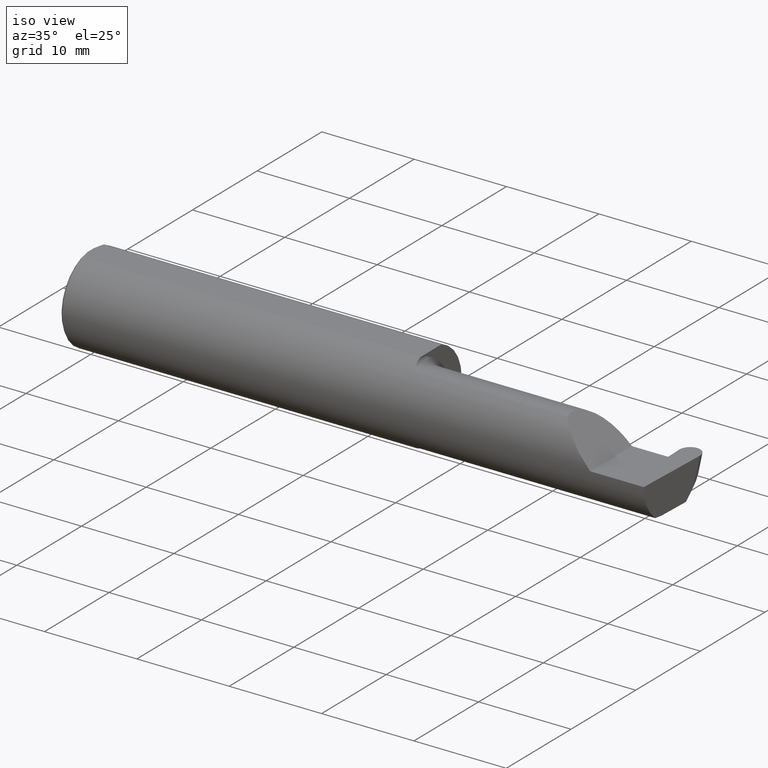
[diagram: clean part render]
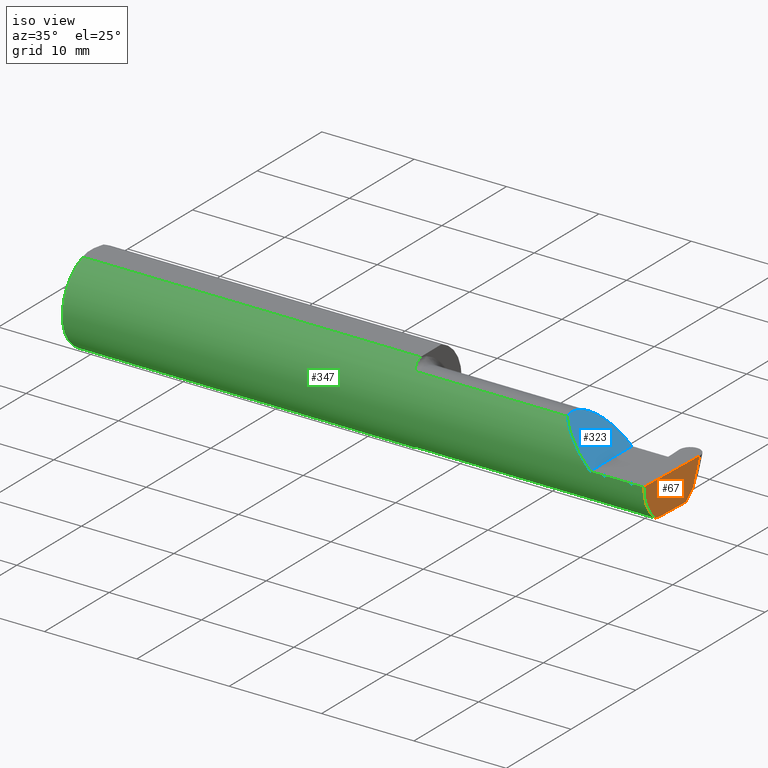
[diagram: same view with three faces highlighted in distinct colors, each labeled with its STEP entity id]
A machine part, iso view with three faces highlighted in distinct colors.
Their STEP definitions:

[orange] entity #67 — the highlighted planar face has unit normal (-0.9992, 0.0349, 0.0175).
#9 = CARTESIAN_POINT ( 'NONE',  ( 2.496782013450319582, 0.1018667288808076804, -0.1084363226623426962 ) ) ;
#16 = DIRECTION ( 'NONE',  ( -0.03489949670249319069, -0.9993908270190959842, 0.000000000000000000 ) ) ;
#38 = ORIENTED_EDGE ( 'NONE', *, *, #447, .T. ) ;
#57 = ORIENTED_EDGE ( 'NONE', *, *, #200, .F. ) ;
#67 = ADVANCED_FACE ( 'NONE', ( #364 ), #420, .F. ) ;
#84 = VERTEX_POINT ( 'NONE', #480 ) ;
#88 = VECTOR ( 'NONE', #229, 39.37007874015748854 ) ;
#93 = DIRECTION ( 'NONE',  ( -0.9992386149554828290, 0.03489418134010589118, 0.01745240643728358451 ) ) ;
#105 = CARTESIAN_POINT ( 'NONE',  ( 2.487566561880238947, -0.1873499999999999610, -0.05781030015605118089 ) ) ;
#109 = CARTESIAN_POINT ( 'NONE',  ( 2.499906297085412898, 0.1370998259008695819, 0.000000000000000000 ) ) ;
#121 = VERTEX_POINT ( 'NONE', #143 ) ;
#122 = VECTOR ( 'NONE', #140, 39.37007874015748854 ) ;
#135 = VERTEX_POINT ( 'NONE', #630 ) ;
#140 = DIRECTION ( 'NONE',  ( 0.02739170151059986541, 0.3089010440752013031, 0.9506996579664918068 ) ) ;
#142 = EDGE_CURVE ( 'NONE', #436, #260, #301, .T. ) ;
#143 = CARTESIAN_POINT ( 'NONE',  ( 2.494604638945828956, 0.06030305154315079852, -0.1500000000000000500 ) ) ;
#178 = VECTOR ( 'NONE', #651, 39.37007874015748143 ) ;
#200 = EDGE_CURVE ( 'NONE', #436, #121, #687, .T. ) ;
#202 = AXIS2_PLACEMENT_3D ( 'NONE', #581, #93, #417 ) ;
#226 = EDGE_CURVE ( 'NONE', #84, #310, #561, .T. ) ;
#229 = DIRECTION ( 'NONE',  ( -0.03701744261649742712, -0.7066221440565398915, -0.7066221440565478851 ) ) ;
#251 = CARTESIAN_POINT ( 'NONE',  ( 2.499922542640338197, 0.1372830298860648612, 0.0005638438891804136138 ) ) ;
#260 = VERTEX_POINT ( 'NONE', #109 ) ;
#272 = CARTESIAN_POINT ( 'NONE',  ( 2.488471823259916782, -0.1172600179964005812, -0.1461167706989303927 ) ) ;
#277 = CARTESIAN_POINT ( 'NONE',  ( 2.488576259503493926, -0.1873499999999999888, 0.000000000000000000 ) ) ;
#280 = CARTESIAN_POINT ( 'NONE',  ( 2.487529306701961485, -0.1623470442677540093, -0.1099340280425339378 ) ) ;
#301 = LINE ( 'NONE', #251, #122 ) ;
#310 = VERTEX_POINT ( 'NONE', #537 ) ;
#339 = ORIENTED_EDGE ( 'NONE', *, *, #142, .T. ) ;
#342 = CARTESIAN_POINT ( 'NONE',  ( 2.499973137204639428, 0.1390138764844880415, 0.000000000000000000 ) ) ;
#364 = FACE_OUTER_BOUND ( 'NONE', #531, .T. ) ;
#372 = ORIENTED_EDGE ( 'NONE', *, *, #226, .F. ) ;
#386 = CARTESIAN_POINT ( 'NONE',  ( 2.488471823259916782, -0.1172600179964005812, -0.1461167706989303927 ) ) ;
#411 = CARTESIAN_POINT ( 'NONE',  ( 2.489588163846105484, -0.08334999999999997966, -0.1500000000000000500 ) ) ;
#417 = DIRECTION ( 'NONE',  ( -0.03489949670249319069, -0.9993908270190959842, 0.000000000000000000 ) ) ;
#420 = PLANE ( 'NONE',  #202 ) ;
#429 = CARTESIAN_POINT ( 'NONE',  ( 2.489884857891535574, -0.07485379416751684889, -0.1500000000000000500 ) ) ;
#430 = CARTESIAN_POINT ( 'NONE',  ( 2.497044125482537957, 0.1068701584290903395, -0.1034328931140599678 ) ) ;
#436 = VERTEX_POINT ( 'NONE', #9 ) ;
#442 =( BOUNDED_CURVE ( )  B_SPLINE_CURVE ( 3, ( #272, #532, #489, #411 ),
 .UNSPECIFIED., .F., .F. ) 
 B_SPLINE_CURVE_WITH_KNOTS ( ( 4, 4 ),
 ( 0.8789888184544065730, 1.107026853503850328 ),
 .UNSPECIFIED. ) 
 CURVE ( )  GEOMETRIC_REPRESENTATION_ITEM ( )  RATIONAL_B_SPLINE_CURVE ( ( 1.000000000000000000, 0.9956712472009929815, 0.9956712472009929815, 1.000000000000000000 ) ) 
 REPRESENTATION_ITEM ( '' )  );
#447 = EDGE_CURVE ( 'NONE', #260, #310, #671, .T. ) ;
#480 = CARTESIAN_POINT ( 'NONE',  ( 2.488471823259916782, -0.1172600179964005812, -0.1461167706989303927 ) ) ;
#489 = CARTESIAN_POINT ( 'NONE',  ( 2.489189135516857831, -0.09477667630339406402, -0.1500000000000000500 ) ) ;
#531 = EDGE_LOOP ( 'NONE', ( #57, #339, #38, #372, #696, #606 ) ) ;
#532 = CARTESIAN_POINT ( 'NONE',  ( 2.488815404197634251, -0.1061291577212407494, -0.1486999626928446616 ) ) ;
#537 = CARTESIAN_POINT ( 'NONE',  ( 2.488576259503493926, -0.1873499999999999888, 0.000000000000000000 ) ) ;
#561 =( BOUNDED_CURVE ( )  B_SPLINE_CURVE ( 3, ( #386, #280, #105, #277 ),
 .UNSPECIFIED., .F., .T. ) 
 B_SPLINE_CURVE_WITH_KNOTS ( ( 4, 4 ),
 ( 5.852427379562185727, 6.746954780470634461 ),
 .UNSPECIFIED. ) 
 CURVE ( )  GEOMETRIC_REPRESENTATION_ITEM ( )  RATIONAL_B_SPLINE_CURVE ( ( 1.000000000000000000, 0.9344226172588800949, 0.9344226172588800949, 1.000000000000000000 ) ) 
 REPRESENTATION_ITEM ( '' )  );
#575 = EDGE_CURVE ( 'NONE', #84, #135, #442, .T. ) ;
#577 = VECTOR ( 'NONE', #16, 39.37007874015748854 ) ;
#581 = CARTESIAN_POINT ( 'NONE',  ( 2.499973137204639428, 0.1390138764844880415, 0.000000000000000000 ) ) ;
#606 = ORIENTED_EDGE ( 'NONE', *, *, #610, .F. ) ;
#610 = EDGE_CURVE ( 'NONE', #121, #135, #701, .T. ) ;
#630 = CARTESIAN_POINT ( 'NONE',  ( 2.489588163846105484, -0.08334999999999997966, -0.1500000000000000500 ) ) ;
#651 = DIRECTION ( 'NONE',  ( -0.03489949670249319069, -0.9993908270190959842, 0.000000000000000000 ) ) ;
#671 = LINE ( 'NONE', #342, #577 ) ;
#687 = LINE ( 'NONE', #430, #88 ) ;
#696 = ORIENTED_EDGE ( 'NONE', *, *, #575, .T. ) ;
#701 = LINE ( 'NONE', #429, #178 ) ;

[blue] entity #323 — the highlighted planar face has unit normal (-0.7071, 0, -0.7071).
#10 = VERTEX_POINT ( 'NONE', #173 ) ;
#41 = ORIENTED_EDGE ( 'NONE', *, *, #632, .T. ) ;
#43 = DIRECTION ( 'NONE',  ( -0.7071067811865441310, 0.000000000000000000, -0.7071067811865510144 ) ) ;
#65 = CARTESIAN_POINT ( 'NONE',  ( 2.202189699843948301, -0.1873500000000000443, 0.05781030015605120170 ) ) ;
#173 = CARTESIAN_POINT ( 'NONE',  ( 2.260000000000000231, 0.06665000000000002867, 1.285879139104721225E-16 ) ) ;
#177 = CARTESIAN_POINT ( 'NONE',  ( 2.113883229301068312, -0.1172600179964003175, 0.1461167706989304760 ) ) ;
#196 =( BOUNDED_CURVE ( )  B_SPLINE_CURVE ( 3, ( #419, #215, #644, #262 ),
 .UNSPECIFIED., .F., .T. ) 
 B_SPLINE_CURVE_WITH_KNOTS ( ( 4, 4 ),
 ( 6.055147272130144920, 7.853981633974482790 ),
 .UNSPECIFIED. ) 
 CURVE ( )  GEOMETRIC_REPRESENTATION_ITEM ( )  RATIONAL_B_SPLINE_CURVE ( ( 1.000000000000000000, 0.7480442670255273985, 0.7480442670255273985, 1.000000000000000000 ) ) 
 REPRESENTATION_ITEM ( '' )  );
#215 = CARTESIAN_POINT ( 'NONE',  ( 2.090221225029926355, -0.01530148607434139371, 0.1697787749700724880 ) ) ;
#234 = LINE ( 'NONE', #327, #545 ) ;
#236 = EDGE_LOOP ( 'NONE', ( #555, #553, #41 ) ) ;
#250 = AXIS2_PLACEMENT_3D ( 'NONE', #661, #43, #383 ) ;
#262 = CARTESIAN_POINT ( 'NONE',  ( 2.260000000000000231, 0.06665000000000002867, 1.285879139104721225E-16 ) ) ;
#276 = CARTESIAN_POINT ( 'NONE',  ( 2.150065971957464850, -0.1623470442677540371, 0.1099340280425340488 ) ) ;
#323 = ADVANCED_FACE ( 'NONE', ( #439 ), #664, .F. ) ;
#327 = CARTESIAN_POINT ( 'NONE',  ( 2.260000000000000231, -0.2500000000000000555, 2.939152317953647352E-17 ) ) ;
#383 = DIRECTION ( 'NONE',  ( -0.7071067811865509034, 0.000000000000000000, 0.7071067811865440200 ) ) ;
#419 = CARTESIAN_POINT ( 'NONE',  ( 2.113883229301068312, -0.1172600179964003175, 0.1461167706989304760 ) ) ;
#439 = FACE_OUTER_BOUND ( 'NONE', #236, .T. ) ;
#468 = VERTEX_POINT ( 'NONE', #516 ) ;
#492 = CARTESIAN_POINT ( 'NONE',  ( 2.113883229301068312, -0.1172600179964003175, 0.1461167706989304760 ) ) ;
#499 = VERTEX_POINT ( 'NONE', #177 ) ;
#516 = CARTESIAN_POINT ( 'NONE',  ( 2.260000000000000231, -0.1873499999999999888, 2.939152317953647352E-17 ) ) ;
#545 = VECTOR ( 'NONE', #660, 39.37007874015748143 ) ;
#553 = ORIENTED_EDGE ( 'NONE', *, *, #677, .F. ) ;
#555 = ORIENTED_EDGE ( 'NONE', *, *, #594, .F. ) ;
#556 = CARTESIAN_POINT ( 'NONE',  ( 2.260000000000000231, -0.1873499999999999888, 2.939152317953647352E-17 ) ) ;
#594 = EDGE_CURVE ( 'NONE', #499, #10, #196, .T. ) ;
#632 = EDGE_CURVE ( 'NONE', #468, #10, #234, .T. ) ;
#644 = CARTESIAN_POINT ( 'NONE',  ( 2.155331797197863608, 0.06665000000000002867, 0.1046682028021359151 ) ) ;
#660 = DIRECTION ( 'NONE',  ( -0.000000000000000000, 1.000000000000000000, -0.000000000000000000 ) ) ;
#661 = CARTESIAN_POINT ( 'NONE',  ( 2.260000000000000231, -0.2500000000000000555, 2.939152317953647352E-17 ) ) ;
#664 = PLANE ( 'NONE',  #250 ) ;
#665 =( BOUNDED_CURVE ( )  B_SPLINE_CURVE ( 3, ( #556, #65, #276, #492 ),
 .UNSPECIFIED., .F., .F. ) 
 B_SPLINE_CURVE_WITH_KNOTS ( ( 4, 4 ),
 ( 4.712388980384688786, 5.606916381293139295 ),
 .UNSPECIFIED. ) 
 CURVE ( )  GEOMETRIC_REPRESENTATION_ITEM ( )  RATIONAL_B_SPLINE_CURVE ( ( 1.000000000000000000, 0.9344226172588797619, 0.9344226172588797619, 1.000000000000000000 ) ) 
 REPRESENTATION_ITEM ( '' )  );
#677 = EDGE_CURVE ( 'NONE', #468, #499, #665, .T. ) ;

[green] entity #347 — the highlighted cylindrical surface (partial cylindrical patch) has radius 4.7587 mm, axis along (-1, -0, -0).
#2 = LINE ( 'NONE', #388, #511 ) ;
#14 = EDGE_CURVE ( 'NONE', #399, #669, #18, .T. ) ;
#18 = CIRCLE ( 'NONE', #29, 0.1873499999999999888 ) ;
#19 = AXIS2_PLACEMENT_3D ( 'NONE', #560, #571, #238 ) ;
#29 = AXIS2_PLACEMENT_3D ( 'NONE', #682, #509, #572 ) ;
#32 = CARTESIAN_POINT ( 'NONE',  ( 1.465028532764138358, -0.1137241120808235306, -0.1488947809299403791 ) ) ;
#34 = DIRECTION ( 'NONE',  ( 1.000000000000000000, 7.100831337523756508E-17, 0.000000000000000000 ) ) ;
#36 = EDGE_CURVE ( 'NONE', #399, #284, #626, .T. ) ;
#49 = VERTEX_POINT ( 'NONE', #81 ) ;
#50 = DIRECTION ( 'NONE',  ( -1.000000000000000000, -0.000000000000000000, -0.000000000000000000 ) ) ;
#51 = CARTESIAN_POINT ( 'NONE',  ( 1.456287624083520083, -0.1021858045380145130, 0.1571187174372875028 ) ) ;
#58 = CARTESIAN_POINT ( 'NONE',  ( 0.01000000000000013205, 0.000000000000000000, -0.1873499999999999888 ) ) ;
#65 = CARTESIAN_POINT ( 'NONE',  ( 2.202189699843948301, -0.1873500000000000443, 0.05781030015605120170 ) ) ;
#75 = DIRECTION ( 'NONE',  ( 0.000000000000000000, 1.000000000000000000, 0.000000000000000000 ) ) ;
#76 = VERTEX_POINT ( 'NONE', #257 ) ;
#81 = CARTESIAN_POINT ( 'NONE',  ( 1.450000000000000178, -0.06851976604679066440, 0.1743704796142198643 ) ) ;
#84 = VERTEX_POINT ( 'NONE', #480 ) ;
#102 = CARTESIAN_POINT ( 'NONE',  ( 1.450000000000000178, -0.06851976604679066440, 0.1743704796142198643 ) ) ;
#105 = CARTESIAN_POINT ( 'NONE',  ( 2.487566561880238947, -0.1873499999999999610, -0.05781030015605118089 ) ) ;
#106 = ORIENTED_EDGE ( 'NONE', *, *, #684, .F. ) ;
#110 = ORIENTED_EDGE ( 'NONE', *, *, #308, .F. ) ;
#111 = CIRCLE ( 'NONE', #393, 0.1873499999999999888 ) ;
#113 = CARTESIAN_POINT ( 'NONE',  ( 1.451829077486400443, -0.08839624499054650475, 0.1652742498708037744 ) ) ;
#118 = ORIENTED_EDGE ( 'NONE', *, *, #302, .F. ) ;
#119 = LINE ( 'NONE', #381, #203 ) ;
#144 = ORIENTED_EDGE ( 'NONE', *, *, #469, .F. ) ;
#154 = CARTESIAN_POINT ( 'NONE',  ( 1.458439486659307338, -0.1064616213911158266, -0.1542305641651500470 ) ) ;
#161 = CARTESIAN_POINT ( 'NONE',  ( 1.450000000000000178, -0.06325108694718287183, 0.1763499999999999235 ) ) ;
#169 = CARTESIAN_POINT ( 'NONE',  ( 1.450000000000000178, 0.000000000000000000, 0.000000000000000000 ) ) ;
#171 = DIRECTION ( 'NONE',  ( 1.000000000000000000, 7.100831337523756508E-17, 0.000000000000000000 ) ) ;
#175 = EDGE_CURVE ( 'NONE', #233, #76, #389, .T. ) ;
#176 = CIRCLE ( 'NONE', #613, 0.1873499999999999888 ) ;
#177 = CARTESIAN_POINT ( 'NONE',  ( 2.113883229301068312, -0.1172600179964003175, 0.1461167706989304760 ) ) ;
#179 = DIRECTION ( 'NONE',  ( 1.000000000000000000, 0.000000000000000000, 0.000000000000000000 ) ) ;
#180 = AXIS2_PLACEMENT_3D ( 'NONE', #169, #648, #698 ) ;
#183 = ORIENTED_EDGE ( 'NONE', *, *, #14, .T. ) ;
#203 = VECTOR ( 'NONE', #604, 39.37007874015748143 ) ;
#205 = CARTESIAN_POINT ( 'NONE',  ( 1.474999999999999867, -0.1172600179964005951, -0.1461167706989303927 ) ) ;
#207 = CARTESIAN_POINT ( 'NONE',  ( 1.472174967710399462, -0.1172600179964005812, -0.1461167706989304205 ) ) ;
#209 = LINE ( 'NONE', #422, #602 ) ;
#220 = CARTESIAN_POINT ( 'NONE',  ( 1.469481469043492083, -0.1163560528186164955, 0.1468472430636323933 ) ) ;
#226 = EDGE_CURVE ( 'NONE', #84, #310, #561, .T. ) ;
#227 = CARTESIAN_POINT ( 'NONE',  ( 1.452945243422983035, -0.09312071749437422774, 0.1626553472577906556 ) ) ;
#233 = VERTEX_POINT ( 'NONE', #375 ) ;
#238 = DIRECTION ( 'NONE',  ( 0.000000000000000000, 0.000000000000000000, 1.000000000000000000 ) ) ;
#242 = EDGE_CURVE ( 'NONE', #669, #591, #176, .T. ) ;
#257 = CARTESIAN_POINT ( 'NONE',  ( 1.450000000000000178, -0.06851976604679066440, -0.1743704796142198643 ) ) ;
#263 = CARTESIAN_POINT ( 'NONE',  ( 1.469511795768554840, -0.1163687266324234387, -0.1468371510166788796 ) ) ;
#273 = CARTESIAN_POINT ( 'NONE',  ( 1.458475602106621638, -0.1064978748893405103, 0.1542035505680384444 ) ) ;
#276 = CARTESIAN_POINT ( 'NONE',  ( 2.150065971957464850, -0.1623470442677540371, 0.1099340280425340488 ) ) ;
#277 = CARTESIAN_POINT ( 'NONE',  ( 2.488576259503493926, -0.1873499999999999888, 0.000000000000000000 ) ) ;
#280 = CARTESIAN_POINT ( 'NONE',  ( 2.487529306701961485, -0.1623470442677540093, -0.1099340280425339378 ) ) ;
#284 = VERTEX_POINT ( 'NONE', #161 ) ;
#287 = CARTESIAN_POINT ( 'NONE',  ( 0.000000000000000000, -0.06325108694718235836, 0.1763499999999999235 ) ) ;
#290 = FACE_OUTER_BOUND ( 'NONE', #402, .T. ) ;
#299 = ORIENTED_EDGE ( 'NONE', *, *, #569, .T. ) ;
#302 = EDGE_CURVE ( 'NONE', #76, #612, #614, .T. ) ;
#308 = EDGE_CURVE ( 'NONE', #49, #579, #649, .T. ) ;
#310 = VERTEX_POINT ( 'NONE', #537 ) ;
#311 = DIRECTION ( 'NONE',  ( -1.000000000000000000, -0.000000000000000000, -0.000000000000000000 ) ) ;
#313 = ORIENTED_EDGE ( 'NONE', *, *, #226, .T. ) ;
#314 = CARTESIAN_POINT ( 'NONE',  ( 0.000000000000000000, 0.06325108694718235836, 0.1763499999999999235 ) ) ;
#315 = CARTESIAN_POINT ( 'NONE',  ( 1.449999999999999734, -0.07367581953296700736, 0.1723443821957854338 ) ) ;
#324 = ORIENTED_EDGE ( 'NONE', *, *, #36, .F. ) ;
#325 = DIRECTION ( 'NONE',  ( 1.000000000000000000, 0.000000000000000000, 0.000000000000000000 ) ) ;
#333 = CARTESIAN_POINT ( 'NONE',  ( 1.450000000000000178, 0.000000000000000000, 0.000000000000000000 ) ) ;
#337 = VECTOR ( 'NONE', #50, 39.37007874015748143 ) ;
#347 = ADVANCED_FACE ( 'NONE', ( #290 ), #501, .T. ) ;
#352 = ORIENTED_EDGE ( 'NONE', *, *, #514, .F. ) ;
#357 = CARTESIAN_POINT ( 'NONE',  ( 1.450358271039144054, -0.07873626113568082951, -0.1700887912276896063 ) ) ;
#375 = CARTESIAN_POINT ( 'NONE',  ( 1.474999999999999867, -0.1172600179964005951, -0.1461167706989303927 ) ) ;
#379 = ORIENTED_EDGE ( 'NONE', *, *, #175, .F. ) ;
#381 = CARTESIAN_POINT ( 'NONE',  ( 1.943402844999999823, -0.1172600179964006090, -0.1461167706989303927 ) ) ;
#386 = CARTESIAN_POINT ( 'NONE',  ( 2.488471823259916782, -0.1172600179964005812, -0.1461167706989303927 ) ) ;
#388 = CARTESIAN_POINT ( 'NONE',  ( 1.943402844999999823, -0.1172600179964006090, 0.1461167706989303927 ) ) ;
#389 = B_SPLINE_CURVE_WITH_KNOTS ( 'NONE', 3,
 ( #205, #207, #263, #32, #466, #154, #584, #409, #695, #357, #526, #519 ),
 .UNSPECIFIED., .F., .F.,
 ( 4, 2, 2, 2, 2, 4 ),
 ( 1.967976973658592312E-07, 0.0002120314145722272182, 0.0004238660314470885418, 0.0008475352651967994798, 0.001271204498946510147, 0.001694873732696220922 ),
 .UNSPECIFIED. ) ;
#393 = AXIS2_PLACEMENT_3D ( 'NONE', #333, #34, #75 ) ;
#399 = VERTEX_POINT ( 'NONE', #611 ) ;
#402 = EDGE_LOOP ( 'NONE', ( #106, #313, #299, #432, #688, #110, #144, #324, #183, #663, #352, #118, #379 ) ) ;
#409 = CARTESIAN_POINT ( 'NONE',  ( 1.452960551809340917, -0.09317341542745745386, -0.1626248379125197208 ) ) ;
#422 = CARTESIAN_POINT ( 'NONE',  ( 3.749399456654646757E-32, -0.1873499999999999610, 3.061616997868383634E-16 ) ) ;
#432 = ORIENTED_EDGE ( 'NONE', *, *, #677, .T. ) ;
#466 = CARTESIAN_POINT ( 'NONE',  ( 1.463203859946834440, -0.1120371980050638566, -0.1501764597936559309 ) ) ;
#468 = VERTEX_POINT ( 'NONE', #516 ) ;
#469 = EDGE_CURVE ( 'NONE', #284, #49, #111, .T. ) ;
#474 = LINE ( 'NONE', #314, #337 ) ;
#480 = CARTESIAN_POINT ( 'NONE',  ( 2.488471823259916782, -0.1172600179964005812, -0.1461167706989303927 ) ) ;
#483 = CARTESIAN_POINT ( 'NONE',  ( 1.474999999999999867, -0.1172600179964006090, 0.1461167706989303927 ) ) ;
#490 = CARTESIAN_POINT ( 'NONE',  ( 1.463163223656403167, -0.1119926267047276769, 0.1502091925606063583 ) ) ;
#492 = CARTESIAN_POINT ( 'NONE',  ( 2.113883229301068312, -0.1172600179964003175, 0.1461167706989304760 ) ) ;
#499 = VERTEX_POINT ( 'NONE', #177 ) ;
#501 = CYLINDRICAL_SURFACE ( 'NONE', #19, 0.1873499999999999888 ) ;
#509 = DIRECTION ( 'NONE',  ( 1.000000000000000000, 0.000000000000000000, 0.000000000000000000 ) ) ;
#511 = VECTOR ( 'NONE', #171, 39.37007874015748143 ) ;
#514 = EDGE_CURVE ( 'NONE', #612, #591, #474, .T. ) ;
#516 = CARTESIAN_POINT ( 'NONE',  ( 2.260000000000000231, -0.1873499999999999888, 2.939152317953647352E-17 ) ) ;
#519 = CARTESIAN_POINT ( 'NONE',  ( 1.450000000000000178, -0.06851976604679066440, -0.1743704796142198643 ) ) ;
#526 = CARTESIAN_POINT ( 'NONE',  ( 1.449999999999999734, -0.07368234487347195827, -0.1723418180300748115 ) ) ;
#537 = CARTESIAN_POINT ( 'NONE',  ( 2.488576259503493926, -0.1873499999999999888, 0.000000000000000000 ) ) ;
#542 = CARTESIAN_POINT ( 'NONE',  ( 0.01000000000000013205, 0.06325108694718235836, 0.1763499999999999235 ) ) ;
#543 = CARTESIAN_POINT ( 'NONE',  ( 1.450353553376444893, -0.07868116735658678418, 0.1701139256562800572 ) ) ;
#544 = VECTOR ( 'NONE', #179, 39.37007874015748143 ) ;
#548 = CARTESIAN_POINT ( 'NONE',  ( 1.472161949849308371, -0.1172600179964061184, 0.1461167706989260628 ) ) ;
#556 = CARTESIAN_POINT ( 'NONE',  ( 2.260000000000000231, -0.1873499999999999888, 2.939152317953647352E-17 ) ) ;
#560 = CARTESIAN_POINT ( 'NONE',  ( 0.000000000000000000, 0.000000000000000000, 0.000000000000000000 ) ) ;
#561 =( BOUNDED_CURVE ( )  B_SPLINE_CURVE ( 3, ( #386, #280, #105, #277 ),
 .UNSPECIFIED., .F., .T. ) 
 B_SPLINE_CURVE_WITH_KNOTS ( ( 4, 4 ),
 ( 5.852427379562185727, 6.746954780470634461 ),
 .UNSPECIFIED. ) 
 CURVE ( )  GEOMETRIC_REPRESENTATION_ITEM ( )  RATIONAL_B_SPLINE_CURVE ( ( 1.000000000000000000, 0.9344226172588800949, 0.9344226172588800949, 1.000000000000000000 ) ) 
 REPRESENTATION_ITEM ( '' )  );
#569 = EDGE_CURVE ( 'NONE', #310, #468, #209, .T. ) ;
#571 = DIRECTION ( 'NONE',  ( -1.000000000000000000, -0.000000000000000000, -0.000000000000000000 ) ) ;
#572 = DIRECTION ( 'NONE',  ( 0.000000000000000000, 0.000000000000000000, -1.000000000000000000 ) ) ;
#579 = VERTEX_POINT ( 'NONE', #637 ) ;
#584 = CARTESIAN_POINT ( 'NONE',  ( 1.456304331342287428, -0.1022198306720691063, -0.1570962426853818317 ) ) ;
#591 = VERTEX_POINT ( 'NONE', #542 ) ;
#592 = CARTESIAN_POINT ( 'NONE',  ( 1.450000000000000178, 0.06325108694718235836, 0.1763499999999999235 ) ) ;
#595 = CARTESIAN_POINT ( 'NONE',  ( 0.01000000000000013205, 0.000000000000000000, 0.000000000000000000 ) ) ;
#602 = VECTOR ( 'NONE', #311, 39.37007874015748143 ) ;
#604 = DIRECTION ( 'NONE',  ( -1.000000000000000000, -7.100831337523756508E-17, -0.000000000000000000 ) ) ;
#611 = CARTESIAN_POINT ( 'NONE',  ( 0.01000000000000013205, -0.06325108694718235836, 0.1763499999999999235 ) ) ;
#612 = VERTEX_POINT ( 'NONE', #592 ) ;
#613 = AXIS2_PLACEMENT_3D ( 'NONE', #595, #325, #704 ) ;
#614 = CIRCLE ( 'NONE', #180, 0.1873499999999999888 ) ;
#626 = LINE ( 'NONE', #287, #544 ) ;
#637 = CARTESIAN_POINT ( 'NONE',  ( 1.474999999999999867, -0.1172600179964006090, 0.1461167706989303927 ) ) ;
#648 = DIRECTION ( 'NONE',  ( 1.000000000000000000, 7.100831337523756508E-17, 0.000000000000000000 ) ) ;
#649 = B_SPLINE_CURVE_WITH_KNOTS ( 'NONE', 3,
 ( #102, #315, #543, #113, #227, #51, #273, #490, #708, #220, #548, #483 ),
 .UNSPECIFIED., .F., .F.,
 ( 4, 2, 2, 2, 2, 4 ),
 ( 4.423516731080825304E-05, 0.0004615475116586708129, 0.0008788598560065332983, 0.001296172200354396000, 0.001504828372528326484, 0.001713484544702256968 ),
 .UNSPECIFIED. ) ;
#652 = EDGE_CURVE ( 'NONE', #579, #499, #2, .T. ) ;
#663 = ORIENTED_EDGE ( 'NONE', *, *, #242, .T. ) ;
#665 =( BOUNDED_CURVE ( )  B_SPLINE_CURVE ( 3, ( #556, #65, #276, #492 ),
 .UNSPECIFIED., .F., .F. ) 
 B_SPLINE_CURVE_WITH_KNOTS ( ( 4, 4 ),
 ( 4.712388980384688786, 5.606916381293139295 ),
 .UNSPECIFIED. ) 
 CURVE ( )  GEOMETRIC_REPRESENTATION_ITEM ( )  RATIONAL_B_SPLINE_CURVE ( ( 1.000000000000000000, 0.9344226172588797619, 0.9344226172588797619, 1.000000000000000000 ) ) 
 REPRESENTATION_ITEM ( '' )  );
#669 = VERTEX_POINT ( 'NONE', #58 ) ;
#677 = EDGE_CURVE ( 'NONE', #468, #499, #665, .T. ) ;
#682 = CARTESIAN_POINT ( 'NONE',  ( 0.01000000000000013205, 0.000000000000000000, 0.000000000000000000 ) ) ;
#684 = EDGE_CURVE ( 'NONE', #84, #233, #119, .T. ) ;
#688 = ORIENTED_EDGE ( 'NONE', *, *, #652, .F. ) ;
#695 = CARTESIAN_POINT ( 'NONE',  ( 1.451843912362378086, -0.08846956905169091334, -0.1652353808078971809 ) ) ;
#698 = DIRECTION ( 'NONE',  ( 0.000000000000000000, 1.000000000000000000, 0.000000000000000000 ) ) ;
#704 = DIRECTION ( 'NONE',  ( 0.000000000000000000, 0.000000000000000000, -1.000000000000000000 ) ) ;
#708 = CARTESIAN_POINT ( 'NONE',  ( 1.465004157323697376, -0.1137044537483316020, 0.1489098419202428691 ) ) ;